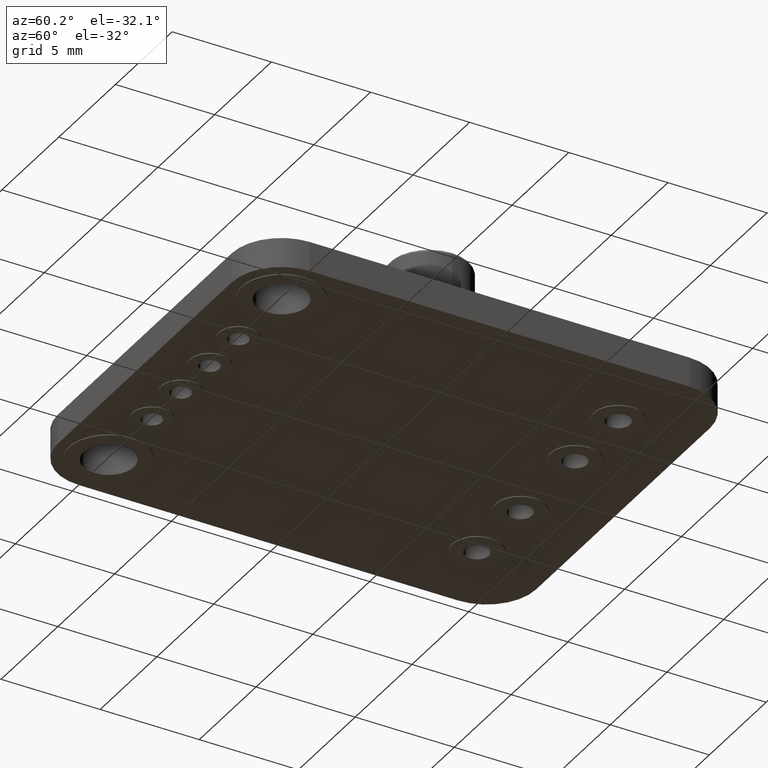
[diagram: clean part render]
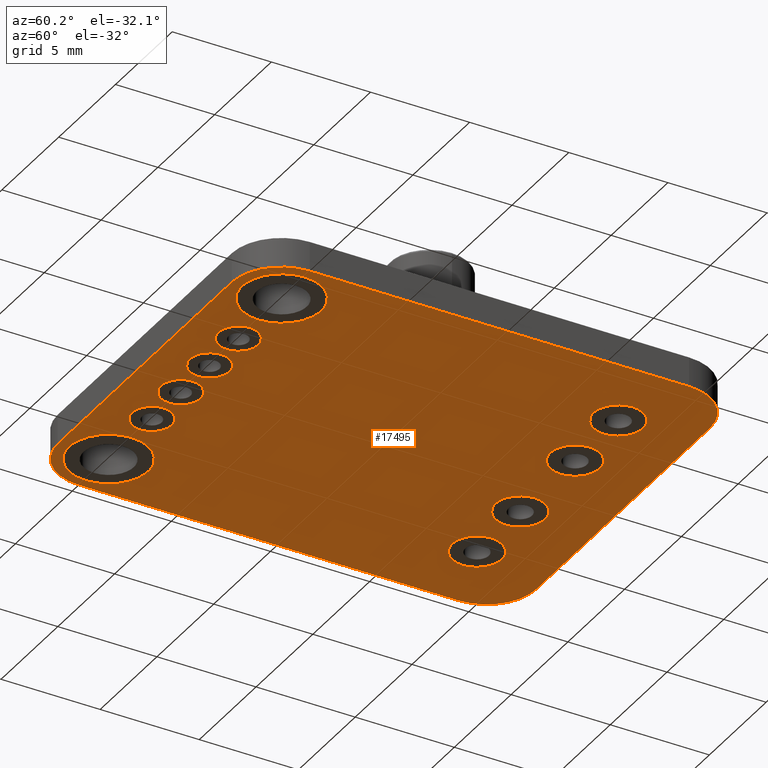
[diagram: same view with one face highlighted and labeled with its STEP entity id]
A machine part, auxiliary view. The second image highlights one B-rep face of the part: STEP entity #17495.
In plain terms, the highlighted planar face has unit normal (0, 0, 1).
Its self-contained STEP definition (entity closure, byte-faithful):
#271=CIRCLE('',#18240,2.);
#274=CIRCLE('',#18245,2.);
#277=CIRCLE('',#18250,1.25);
#280=CIRCLE('',#18255,1.25);
#283=CIRCLE('',#18260,1.25);
#286=CIRCLE('',#18265,1.25);
#289=CIRCLE('',#18270,1.);
#292=CIRCLE('',#18275,1.);
#295=CIRCLE('',#18280,1.);
#298=CIRCLE('',#18285,1.);
#320=CIRCLE('',#18339,2.5);
#321=CIRCLE('',#18340,2.5);
#322=CIRCLE('',#18341,2.5);
#323=CIRCLE('',#18342,2.5);
#598=FACE_BOUND('',#2688,.T.);
#599=FACE_BOUND('',#2689,.T.);
#600=FACE_BOUND('',#2690,.T.);
#601=FACE_BOUND('',#2691,.T.);
#602=FACE_BOUND('',#2692,.T.);
#603=FACE_BOUND('',#2693,.T.);
#604=FACE_BOUND('',#2694,.T.);
#605=FACE_BOUND('',#2695,.T.);
#606=FACE_BOUND('',#2696,.T.);
#607=FACE_BOUND('',#2697,.T.);
#888=PLANE('',#18338);
#1656=FACE_OUTER_BOUND('',#2687,.T.);
#2687=EDGE_LOOP('',(#13880,#13881,#13882,#13883,#13884,#13885,#13886,#13887));
#2688=EDGE_LOOP('',(#13888));
#2689=EDGE_LOOP('',(#13889));
#2690=EDGE_LOOP('',(#13890));
#2691=EDGE_LOOP('',(#13891));
#2692=EDGE_LOOP('',(#13892));
#2693=EDGE_LOOP('',(#13893));
#2694=EDGE_LOOP('',(#13894));
#2695=EDGE_LOOP('',(#13895));
#2696=EDGE_LOOP('',(#13896));
#2697=EDGE_LOOP('',(#13897));
#3995=LINE('',#28061,#5540);
#3996=LINE('',#28065,#5541);
#3997=LINE('',#28069,#5542);
#3998=LINE('',#28072,#5543);
#5540=VECTOR('',#20522,15.32);
#5541=VECTOR('',#20525,19.13);
#5542=VECTOR('',#20528,15.32);
#5543=VECTOR('',#20531,19.13);
#7788=VERTEX_POINT('',#27879);
#7791=VERTEX_POINT('',#27888);
#7794=VERTEX_POINT('',#27897);
#7797=VERTEX_POINT('',#27906);
#7800=VERTEX_POINT('',#27915);
#7803=VERTEX_POINT('',#27924);
#7806=VERTEX_POINT('',#27933);
#7809=VERTEX_POINT('',#27942);
#7812=VERTEX_POINT('',#27951);
#7815=VERTEX_POINT('',#27960);
#7837=VERTEX_POINT('',#28057);
#7838=VERTEX_POINT('',#28058);
#7839=VERTEX_POINT('',#28060);
#7840=VERTEX_POINT('',#28062);
#7841=VERTEX_POINT('',#28064);
#7842=VERTEX_POINT('',#28066);
#7843=VERTEX_POINT('',#28068);
#7844=VERTEX_POINT('',#28070);
#9873=EDGE_CURVE('',#7788,#7788,#271,.T.);
#9877=EDGE_CURVE('',#7791,#7791,#274,.T.);
#9881=EDGE_CURVE('',#7794,#7794,#277,.T.);
#9885=EDGE_CURVE('',#7797,#7797,#280,.T.);
#9889=EDGE_CURVE('',#7800,#7800,#283,.T.);
#9893=EDGE_CURVE('',#7803,#7803,#286,.T.);
#9897=EDGE_CURVE('',#7806,#7806,#289,.T.);
#9901=EDGE_CURVE('',#7809,#7809,#292,.T.);
#9905=EDGE_CURVE('',#7812,#7812,#295,.T.);
#9909=EDGE_CURVE('',#7815,#7815,#298,.T.);
#9951=EDGE_CURVE('',#7837,#7838,#320,.T.);
#9952=EDGE_CURVE('',#7839,#7837,#3995,.T.);
#9953=EDGE_CURVE('',#7840,#7839,#321,.T.);
#9954=EDGE_CURVE('',#7841,#7840,#3996,.T.);
#9955=EDGE_CURVE('',#7842,#7841,#322,.T.);
#9956=EDGE_CURVE('',#7843,#7842,#3997,.T.);
#9957=EDGE_CURVE('',#7844,#7843,#323,.T.);
#9958=EDGE_CURVE('',#7838,#7844,#3998,.T.);
#13880=ORIENTED_EDGE('',*,*,#9951,.F.);
#13881=ORIENTED_EDGE('',*,*,#9952,.F.);
#13882=ORIENTED_EDGE('',*,*,#9953,.F.);
#13883=ORIENTED_EDGE('',*,*,#9954,.F.);
#13884=ORIENTED_EDGE('',*,*,#9955,.F.);
#13885=ORIENTED_EDGE('',*,*,#9956,.F.);
#13886=ORIENTED_EDGE('',*,*,#9957,.F.);
#13887=ORIENTED_EDGE('',*,*,#9958,.F.);
#13888=ORIENTED_EDGE('',*,*,#9873,.T.);
#13889=ORIENTED_EDGE('',*,*,#9877,.T.);
#13890=ORIENTED_EDGE('',*,*,#9881,.T.);
#13891=ORIENTED_EDGE('',*,*,#9885,.T.);
#13892=ORIENTED_EDGE('',*,*,#9889,.T.);
#13893=ORIENTED_EDGE('',*,*,#9893,.T.);
#13894=ORIENTED_EDGE('',*,*,#9897,.T.);
#13895=ORIENTED_EDGE('',*,*,#9901,.T.);
#13896=ORIENTED_EDGE('',*,*,#9905,.T.);
#13897=ORIENTED_EDGE('',*,*,#9909,.T.);
#17495=ADVANCED_FACE('',(#1656,#598,#599,#600,#601,#602,#603,#604,#605,
#606,#607),#888,.F.);
#18240=AXIS2_PLACEMENT_3D('',#27881,#20293,#20294);
#18245=AXIS2_PLACEMENT_3D('',#27890,#20304,#20305);
#18250=AXIS2_PLACEMENT_3D('',#27899,#20315,#20316);
#18255=AXIS2_PLACEMENT_3D('',#27908,#20326,#20327);
#18260=AXIS2_PLACEMENT_3D('',#27917,#20337,#20338);
#18265=AXIS2_PLACEMENT_3D('',#27926,#20348,#20349);
#18270=AXIS2_PLACEMENT_3D('',#27935,#20359,#20360);
#18275=AXIS2_PLACEMENT_3D('',#27944,#20370,#20371);
#18280=AXIS2_PLACEMENT_3D('',#27953,#20381,#20382);
#18285=AXIS2_PLACEMENT_3D('',#27962,#20392,#20393);
#18338=AXIS2_PLACEMENT_3D('',#28056,#20518,#20519);
#18339=AXIS2_PLACEMENT_3D('',#28059,#20520,#20521);
#18340=AXIS2_PLACEMENT_3D('',#28063,#20523,#20524);
#18341=AXIS2_PLACEMENT_3D('',#28067,#20526,#20527);
#18342=AXIS2_PLACEMENT_3D('',#28071,#20529,#20530);
#20293=DIRECTION('center_axis',(0.,0.,1.));
#20294=DIRECTION('ref_axis',(1.,0.,0.));
#20304=DIRECTION('center_axis',(0.,0.,1.));
#20305=DIRECTION('ref_axis',(1.,0.,0.));
#20315=DIRECTION('center_axis',(0.,0.,1.));
#20316=DIRECTION('ref_axis',(1.,0.,0.));
#20326=DIRECTION('center_axis',(0.,0.,1.));
#20327=DIRECTION('ref_axis',(1.,0.,0.));
#20337=DIRECTION('center_axis',(0.,0.,1.));
#20338=DIRECTION('ref_axis',(1.,0.,0.));
#20348=DIRECTION('center_axis',(0.,0.,1.));
#20349=DIRECTION('ref_axis',(1.,0.,0.));
#20359=DIRECTION('center_axis',(0.,0.,1.));
#20360=DIRECTION('ref_axis',(1.,0.,0.));
#20370=DIRECTION('center_axis',(0.,0.,1.));
#20371=DIRECTION('ref_axis',(1.,0.,0.));
#20381=DIRECTION('center_axis',(0.,0.,1.));
#20382=DIRECTION('ref_axis',(1.,0.,0.));
#20392=DIRECTION('center_axis',(0.,0.,1.));
#20393=DIRECTION('ref_axis',(1.,0.,0.));
#20518=DIRECTION('center_axis',(0.,0.,1.));
#20519=DIRECTION('ref_axis',(1.,0.,0.));
#20520=DIRECTION('center_axis',(0.,0.,1.));
#20521=DIRECTION('ref_axis',(0.,-1.,0.));
#20522=DIRECTION('',(-1.,0.,0.));
#20523=DIRECTION('center_axis',(0.,0.,1.));
#20524=DIRECTION('ref_axis',(-1.,0.,0.));
#20525=DIRECTION('',(0.,1.,0.));
#20526=DIRECTION('center_axis',(0.,0.,1.));
#20527=DIRECTION('ref_axis',(0.,1.,0.));
#20528=DIRECTION('',(1.,0.,0.));
#20529=DIRECTION('center_axis',(0.,0.,1.));
#20530=DIRECTION('ref_axis',(1.,0.,0.));
#20531=DIRECTION('',(0.,-1.,0.));
#27879=CARTESIAN_POINT('',(5.62,-9.525,-0.75));
#27881=CARTESIAN_POINT('Origin',(7.62,-9.525,-0.75));
#27888=CARTESIAN_POINT('',(-9.62,-9.525,-0.75));
#27890=CARTESIAN_POINT('Origin',(-7.62,-9.525,-0.75));
#27897=CARTESIAN_POINT('',(4.973,8.255,-0.75));
#27899=CARTESIAN_POINT('Origin',(6.223,8.255,-0.75));
#27906=CARTESIAN_POINT('',(1.163,8.255,-0.75));
#27908=CARTESIAN_POINT('Origin',(2.413,8.255,-0.75));
#27915=CARTESIAN_POINT('',(-3.663,8.255,-0.75));
#27917=CARTESIAN_POINT('Origin',(-2.413,8.255,-0.75));
#27924=CARTESIAN_POINT('',(-7.473,8.255,-0.75));
#27926=CARTESIAN_POINT('Origin',(-6.223,8.255,-0.75));
#27933=CARTESIAN_POINT('',(2.81,-9.525,-0.75));
#27935=CARTESIAN_POINT('Origin',(3.81,-9.525,-0.75));
#27942=CARTESIAN_POINT('',(0.269999999999999,-9.525,-0.75));
#27944=CARTESIAN_POINT('Origin',(1.27,-9.525,-0.75));
#27951=CARTESIAN_POINT('',(-2.27,-9.525,-0.75));
#27953=CARTESIAN_POINT('Origin',(-1.27,-9.525,-0.75));
#27960=CARTESIAN_POINT('',(-4.81,-9.525,-0.75));
#27962=CARTESIAN_POINT('Origin',(-3.81,-9.525,-0.75));
#28056=CARTESIAN_POINT('Origin',(2.775558E-16,6.938894E-17,-0.75));
#28057=CARTESIAN_POINT('',(-7.66,12.065,-0.75));
#28058=CARTESIAN_POINT('',(-10.16,9.565,-0.75));
#28059=CARTESIAN_POINT('Origin',(-7.66,9.565,-0.75));
#28060=CARTESIAN_POINT('',(7.66,12.065,-0.75));
#28061=CARTESIAN_POINT('',(7.66,12.065,-0.75));
#28062=CARTESIAN_POINT('',(10.16,9.565,-0.75));
#28063=CARTESIAN_POINT('Origin',(7.66,9.565,-0.75));
#28064=CARTESIAN_POINT('',(10.16,-9.565,-0.75));
#28065=CARTESIAN_POINT('',(10.16,-9.565,-0.75));
#28066=CARTESIAN_POINT('',(7.66,-12.065,-0.75));
#28067=CARTESIAN_POINT('Origin',(7.66,-9.565,-0.75));
#28068=CARTESIAN_POINT('',(-7.66,-12.065,-0.75));
#28069=CARTESIAN_POINT('',(-7.66,-12.065,-0.75));
#28070=CARTESIAN_POINT('',(-10.16,-9.565,-0.75));
#28071=CARTESIAN_POINT('Origin',(-7.66,-9.565,-0.75));
#28072=CARTESIAN_POINT('',(-10.16,9.565,-0.75));